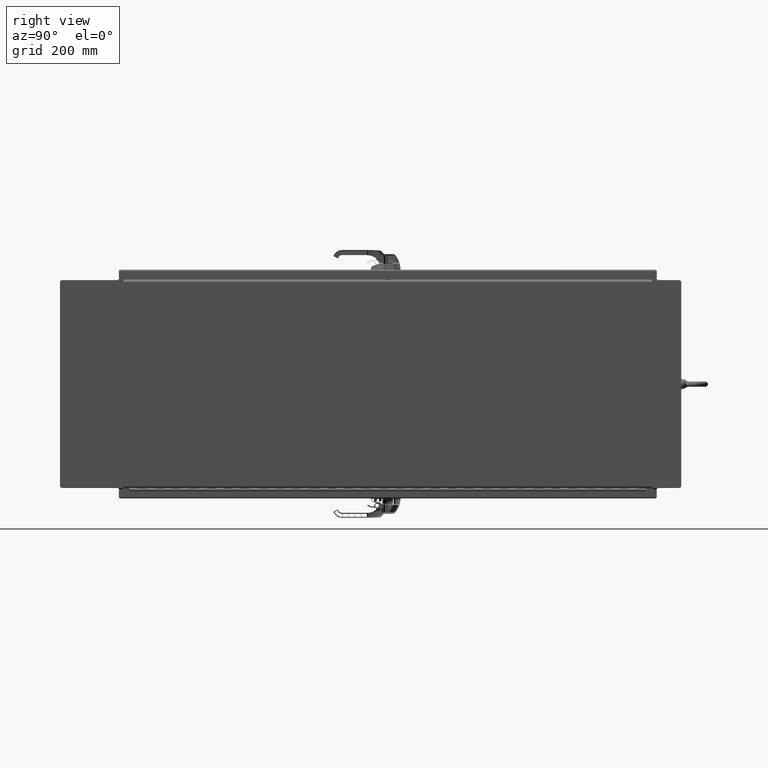
[diagram: clean part render]
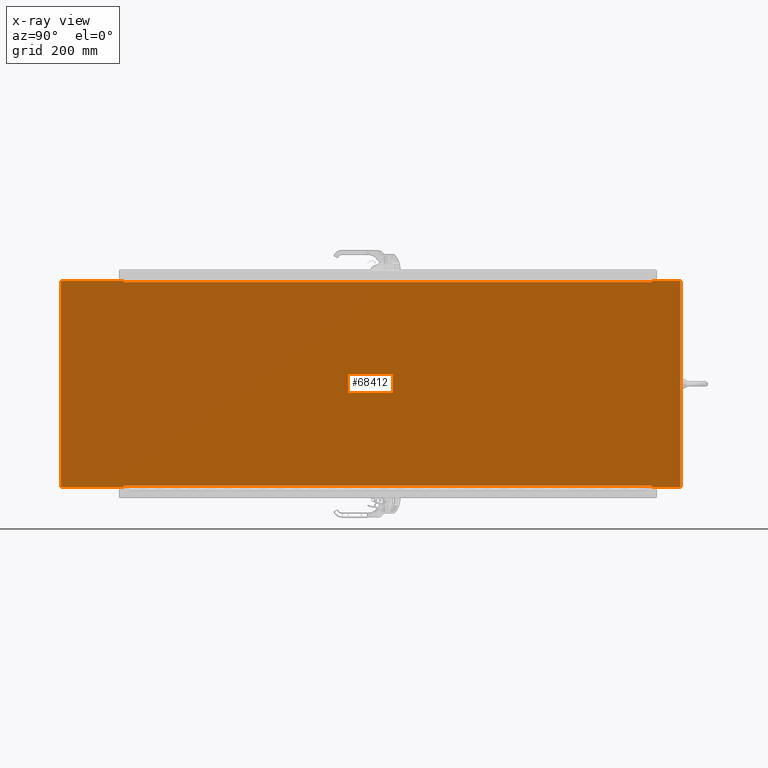
[diagram: x-ray — body ghosted, one internal face saturated and labeled with its STEP entity id]
A machine part, right view, then the same camera in x-ray: the body is ghosted and one INTERNAL B-rep face — a face not visible from any outside direction — is saturated and labeled: STEP entity #68412.
In plain terms, the highlighted planar face has unit normal (-1, -0, -0).
Its self-contained STEP definition (entity closure, byte-faithful):
#9217=PLANE('',#72231);
#10403=FACE_OUTER_BOUND('',#13363,.T.);
#13363=EDGE_LOOP('',(#50479,#50480,#50481,#50482,#50483,#50484,#50485,#50486,
#50487,#50488,#50489,#50490,#50491,#50492,#50493,#50494,#50495,#50496,#50497,
#50498));
#20083=LINE('',#96807,#25249);
#20090=LINE('',#96829,#25256);
#20096=LINE('',#96847,#25262);
#20099=LINE('',#96854,#25265);
#20103=LINE('',#96861,#25269);
#20105=LINE('',#96865,#25271);
#20108=LINE('',#96871,#25274);
#20109=LINE('',#96873,#25275);
#20110=LINE('',#96875,#25276);
#20111=LINE('',#96877,#25277);
#20112=LINE('',#96879,#25278);
#20113=LINE('',#96881,#25279);
#20114=LINE('',#96883,#25280);
#20115=LINE('',#96885,#25281);
#20116=LINE('',#96886,#25282);
#20117=LINE('',#96888,#25283);
#20118=LINE('',#96890,#25284);
#20119=LINE('',#96892,#25285);
#20120=LINE('',#96894,#25286);
#20121=LINE('',#96895,#25287);
#25249=VECTOR('',#78738,0.393700787401575);
#25256=VECTOR('',#78765,0.393700787401575);
#25262=VECTOR('',#78789,0.393700787401575);
#25265=VECTOR('',#78794,0.393700787401575);
#25269=VECTOR('',#78800,0.393700787401575);
#25271=VECTOR('',#78804,0.393700787401575);
#25274=VECTOR('',#78809,0.393700787401575);
#25275=VECTOR('',#78810,0.393700787401575);
#25276=VECTOR('',#78811,0.393700787401575);
#25277=VECTOR('',#78812,0.393700787401575);
#25278=VECTOR('',#78813,0.393700787401575);
#25279=VECTOR('',#78814,0.393700787401575);
#25280=VECTOR('',#78815,0.393700787401575);
#25281=VECTOR('',#78816,0.393700787401575);
#25282=VECTOR('',#78817,0.393700787401575);
#25283=VECTOR('',#78818,0.393700787401575);
#25284=VECTOR('',#78819,0.393700787401575);
#25285=VECTOR('',#78820,0.393700787401575);
#25286=VECTOR('',#78821,0.393700787401575);
#25287=VECTOR('',#78822,0.393700787401575);
#30403=VERTEX_POINT('',#96804);
#30404=VERTEX_POINT('',#96806);
#30408=VERTEX_POINT('',#96826);
#30409=VERTEX_POINT('',#96828);
#30412=VERTEX_POINT('',#96846);
#30414=VERTEX_POINT('',#96852);
#30415=VERTEX_POINT('',#96853);
#30418=VERTEX_POINT('',#96864);
#30420=VERTEX_POINT('',#96870);
#30421=VERTEX_POINT('',#96872);
#30422=VERTEX_POINT('',#96874);
#30423=VERTEX_POINT('',#96876);
#30424=VERTEX_POINT('',#96878);
#30425=VERTEX_POINT('',#96880);
#30426=VERTEX_POINT('',#96882);
#30427=VERTEX_POINT('',#96884);
#30428=VERTEX_POINT('',#96887);
#30429=VERTEX_POINT('',#96889);
#30430=VERTEX_POINT('',#96891);
#30431=VERTEX_POINT('',#96893);
#39709=EDGE_CURVE('',#30404,#30403,#20083,.T.);
#39720=EDGE_CURVE('',#30409,#30408,#20090,.T.);
#39729=EDGE_CURVE('',#30412,#30404,#20096,.T.);
#39732=EDGE_CURVE('',#30414,#30415,#20099,.T.);
#39736=EDGE_CURVE('',#30415,#30412,#20103,.T.);
#39738=EDGE_CURVE('',#30418,#30414,#20105,.T.);
#39741=EDGE_CURVE('',#30403,#30420,#20108,.T.);
#39742=EDGE_CURVE('',#30420,#30421,#20109,.T.);
#39743=EDGE_CURVE('',#30421,#30422,#20110,.T.);
#39744=EDGE_CURVE('',#30422,#30423,#20111,.T.);
#39745=EDGE_CURVE('',#30423,#30424,#20112,.T.);
#39746=EDGE_CURVE('',#30424,#30425,#20113,.T.);
#39747=EDGE_CURVE('',#30425,#30426,#20114,.T.);
#39748=EDGE_CURVE('',#30426,#30427,#20115,.T.);
#39749=EDGE_CURVE('',#30427,#30409,#20116,.T.);
#39750=EDGE_CURVE('',#30408,#30428,#20117,.T.);
#39751=EDGE_CURVE('',#30428,#30429,#20118,.T.);
#39752=EDGE_CURVE('',#30429,#30430,#20119,.T.);
#39753=EDGE_CURVE('',#30430,#30431,#20120,.T.);
#39754=EDGE_CURVE('',#30431,#30418,#20121,.T.);
#50479=ORIENTED_EDGE('',*,*,#39732,.T.);
#50480=ORIENTED_EDGE('',*,*,#39736,.T.);
#50481=ORIENTED_EDGE('',*,*,#39729,.T.);
#50482=ORIENTED_EDGE('',*,*,#39709,.T.);
#50483=ORIENTED_EDGE('',*,*,#39741,.T.);
#50484=ORIENTED_EDGE('',*,*,#39742,.T.);
#50485=ORIENTED_EDGE('',*,*,#39743,.T.);
#50486=ORIENTED_EDGE('',*,*,#39744,.T.);
#50487=ORIENTED_EDGE('',*,*,#39745,.T.);
#50488=ORIENTED_EDGE('',*,*,#39746,.T.);
#50489=ORIENTED_EDGE('',*,*,#39747,.T.);
#50490=ORIENTED_EDGE('',*,*,#39748,.T.);
#50491=ORIENTED_EDGE('',*,*,#39749,.T.);
#50492=ORIENTED_EDGE('',*,*,#39720,.T.);
#50493=ORIENTED_EDGE('',*,*,#39750,.T.);
#50494=ORIENTED_EDGE('',*,*,#39751,.T.);
#50495=ORIENTED_EDGE('',*,*,#39752,.T.);
#50496=ORIENTED_EDGE('',*,*,#39753,.T.);
#50497=ORIENTED_EDGE('',*,*,#39754,.T.);
#50498=ORIENTED_EDGE('',*,*,#39738,.T.);
#68412=ADVANCED_FACE('',(#10403),#9217,.F.);
#72231=AXIS2_PLACEMENT_3D('',#96869,#78807,#78808);
#78738=DIRECTION('',(4.55790198861459E-17,1.,0.));
#78765=DIRECTION('',(-1.82316079544584E-16,-1.,0.));
#78789=DIRECTION('',(-1.,0.,0.));
#78794=DIRECTION('',(1.,0.,0.));
#78800=DIRECTION('',(0.,1.,0.));
#78804=DIRECTION('',(5.83466846262818E-17,1.,0.));
#78807=DIRECTION('center_axis',(0.,0.,1.));
#78808=DIRECTION('ref_axis',(1.,0.,0.));
#78809=DIRECTION('',(1.,0.,0.));
#78810=DIRECTION('',(0.,1.,0.));
#78811=DIRECTION('',(-1.,0.,0.));
#78812=DIRECTION('',(5.83466846262818E-17,1.,0.));
#78813=DIRECTION('',(1.,-2.33926691935628E-16,0.));
#78814=DIRECTION('',(-1.75040053878845E-16,-1.,0.));
#78815=DIRECTION('',(-1.,0.,0.));
#78816=DIRECTION('',(0.,-1.,0.));
#78817=DIRECTION('',(1.,0.,0.));
#78818=DIRECTION('',(-1.,0.,0.));
#78819=DIRECTION('',(0.,-1.,0.));
#78820=DIRECTION('',(1.,0.,0.));
#78821=DIRECTION('',(-1.75040053878845E-16,-1.,0.));
#78822=DIRECTION('',(-1.,4.67853383871256E-16,0.));
#96804=CARTESIAN_POINT('',(-11.817875,32.6875,0.));
#96806=CARTESIAN_POINT('',(-11.817875,-28.6875,0.));
#96807=CARTESIAN_POINT('',(-11.817875,-14.34375,0.));
#96826=CARTESIAN_POINT('',(11.817875,-28.6875,0.));
#96828=CARTESIAN_POINT('',(11.817875,32.6875,0.));
#96829=CARTESIAN_POINT('',(11.817875,16.34375,0.));
#96846=CARTESIAN_POINT('',(-11.817675,-28.6875,0.));
#96847=CARTESIAN_POINT('',(-5.9088375,-28.6875,0.));
#96852=CARTESIAN_POINT('',(-11.9585,-28.6877,0.));
#96853=CARTESIAN_POINT('',(-11.817675,-28.6877,0.));
#96854=CARTESIAN_POINT('',(-5.97925,-28.6877,0.));
#96861=CARTESIAN_POINT('',(-11.817675,-14.34385,0.));
#96864=CARTESIAN_POINT('',(-11.9585,-35.9585,0.));
#96865=CARTESIAN_POINT('',(-11.9585,-35.9585,0.));
#96869=CARTESIAN_POINT('Origin',(2.09805925913415E-15,-2.22609537865391E-15,
0.));
#96870=CARTESIAN_POINT('',(-11.817675,32.6875,0.));
#96871=CARTESIAN_POINT('',(-5.97925,32.6875,0.));
#96872=CARTESIAN_POINT('',(-11.817675,32.6877,0.));
#96873=CARTESIAN_POINT('',(-11.817675,16.34375,0.));
#96874=CARTESIAN_POINT('',(-11.9585,32.6877,0.));
#96875=CARTESIAN_POINT('',(-5.9088375,32.6877,0.));
#96876=CARTESIAN_POINT('',(-11.9585,35.9585,0.));
#96877=CARTESIAN_POINT('',(-11.9585,-35.9585,0.));
#96878=CARTESIAN_POINT('',(11.9585,35.9585,0.));
#96879=CARTESIAN_POINT('',(-11.9585,35.9585,0.));
#96880=CARTESIAN_POINT('',(11.9585,32.6877,0.));
#96881=CARTESIAN_POINT('',(11.9585,35.9585,0.));
#96882=CARTESIAN_POINT('',(11.817675,32.6877,0.));
#96883=CARTESIAN_POINT('',(5.97925000000001,32.6877,0.));
#96884=CARTESIAN_POINT('',(11.817675,32.6875,0.));
#96885=CARTESIAN_POINT('',(11.817675,16.34385,0.));
#96886=CARTESIAN_POINT('',(5.90883750000001,32.6875,0.));
#96887=CARTESIAN_POINT('',(11.817675,-28.6875,0.));
#96888=CARTESIAN_POINT('',(5.97925,-28.6875,0.));
#96889=CARTESIAN_POINT('',(11.817675,-28.6877,0.));
#96890=CARTESIAN_POINT('',(11.817675,-14.34375,0.));
#96891=CARTESIAN_POINT('',(11.9585,-28.6877,0.));
#96892=CARTESIAN_POINT('',(5.9088375,-28.6877,0.));
#96893=CARTESIAN_POINT('',(11.9585,-35.9585,0.));
#96894=CARTESIAN_POINT('',(11.9585,35.9585,0.));
#96895=CARTESIAN_POINT('',(11.9585,-35.9585,0.));